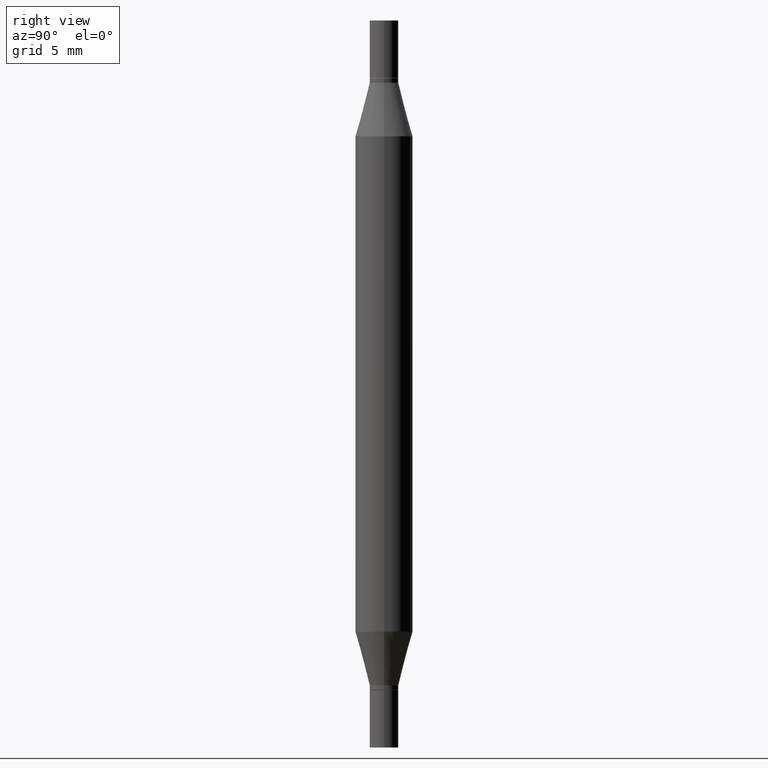
[diagram: clean part render]
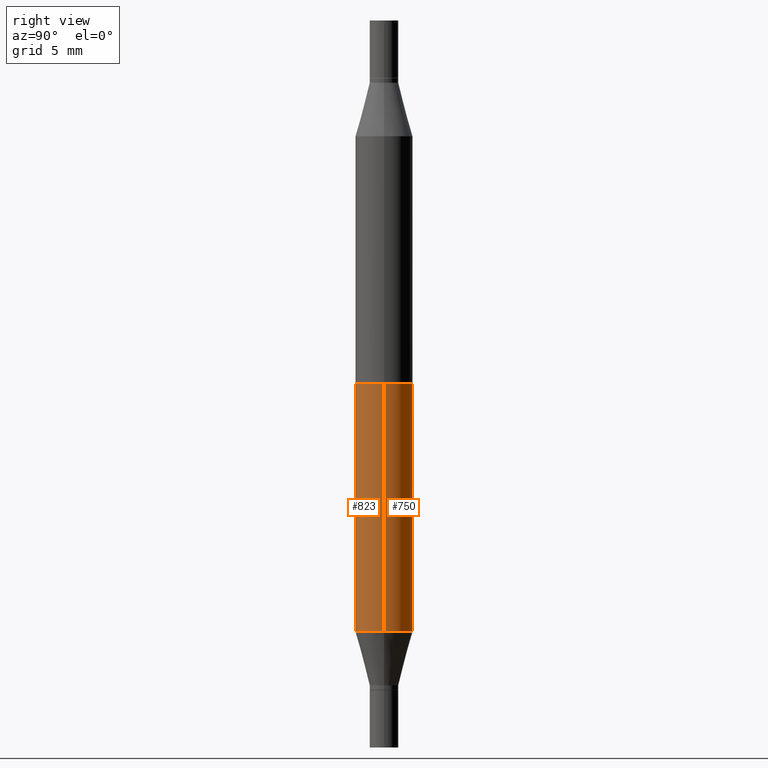
[diagram: same view with one multi-face feature highlighted, each face labeled with its STEP entity id]
A machine part, right view. The highlighted faces form ONE feature: a constant-radius fillet chain: 2 tangent blend faces with common blend radius 1.4999 mm. The faces share edges in the B-rep.
Their STEP definitions:
[1] entity #750 (Cylinder):
#38 = VERTEX_POINT ( 'NONE', #397 ) ;
#46 = AXIS2_PLACEMENT_3D ( 'NONE', #543, #92, #552 ) ;
#48 = LINE ( 'NONE', #741, #148 ) ;
#79 = EDGE_CURVE ( 'NONE', #38, #887, #48, .T. ) ;
#88 = EDGE_CURVE ( 'NONE', #38, #599, #277, .T. ) ;
#92 = DIRECTION ( 'NONE',  ( -2.445468806185136597E-29, -3.491805094961124077E-15, -1.000000000000000000 ) ) ;
#97 = CARTESIAN_POINT ( 'NONE',  ( 0.05904999999999999832, -4.804643186156564878E-15, -1.258004501176717804 ) ) ;
#118 = CARTESIAN_POINT ( 'NONE',  ( -0.05904999999999999832, -2.206690208753205272E-15, -1.258004501176717804 ) ) ;
#121 = DIRECTION ( 'NONE',  ( 1.000000000000000000, -6.982962677686265133E-15, 0.000000000000000000 ) ) ;
#124 = EDGE_LOOP ( 'NONE', ( #504, #434, #691, #747 ) ) ;
#129 = DIRECTION ( 'NONE',  ( 1.000000000000000000, -6.982962677686273021E-15, 0.000000000000000000 ) ) ;
#148 = VECTOR ( 'NONE', #270, 39.37007874015748143 ) ;
#169 = CARTESIAN_POINT ( 'NONE',  ( -0.05905000000000000526, -4.818735010038875060E-15, -1.496099999999999985 ) ) ;
#224 = CIRCLE ( 'NONE', #754, 0.05904999999999999832 ) ;
#256 = EDGE_CURVE ( 'NONE', #887, #672, #224, .T. ) ;
#270 = DIRECTION ( 'NONE',  ( -2.445468806185136877E-29, -3.491805094961123683E-15, -1.000000000000000000 ) ) ;
#277 = CIRCLE ( 'NONE', #868, 0.05904999999999999832 ) ;
#329 = CYLINDRICAL_SURFACE ( 'NONE', #46, 0.05905000000000000526 ) ;
#331 = DIRECTION ( 'NONE',  ( -2.445468806185136877E-29, -3.491805094961123683E-15, -1.000000000000000000 ) ) ;
#336 = LINE ( 'NONE', #169, #873 ) ;
#356 = CARTESIAN_POINT ( 'NONE',  ( 3.076410765668156654E-29, -4.392299240039190746E-15, -1.258004501176717804 ) ) ;
#381 = CARTESIAN_POINT ( 'NONE',  ( -0.05904999999999999832, -4.260284833459836245E-16, -0.2380954988232820146 ) ) ;
#397 = CARTESIAN_POINT ( 'NONE',  ( 0.05904999999999999832, -1.243484836231766624E-15, -0.2380954988232820146 ) ) ;
#434 = ORIENTED_EDGE ( 'NONE', *, *, #88, .F. ) ;
#492 = EDGE_CURVE ( 'NONE', #599, #672, #336, .T. ) ;
#504 = ORIENTED_EDGE ( 'NONE', *, *, #492, .F. ) ;
#536 = FACE_OUTER_BOUND ( 'NONE', #124, .T. ) ;
#543 = CARTESIAN_POINT ( 'NONE',  ( 0.000000000000000000, -5.223847416807283040E-15, -1.496099999999999985 ) ) ;
#552 = DIRECTION ( 'NONE',  ( 1.000000000000000000, -6.982962677686272233E-15, 0.000000000000000000 ) ) ;
#591 = DIRECTION ( 'NONE',  ( 2.445468806185136597E-29, 3.491805094961124077E-15, 1.000000000000000000 ) ) ;
#599 = VERTEX_POINT ( 'NONE', #381 ) ;
#672 = VERTEX_POINT ( 'NONE', #118 ) ;
#691 = ORIENTED_EDGE ( 'NONE', *, *, #79, .T. ) ;
#741 = CARTESIAN_POINT ( 'NONE',  ( 0.05905000000000000526, -5.636191362924657961E-15, -1.496099999999999985 ) ) ;
#747 = ORIENTED_EDGE ( 'NONE', *, *, #256, .T. ) ;
#750 = ADVANCED_FACE ( 'NONE', ( #536 ), #329, .T. ) ;
#754 = AXIS2_PLACEMENT_3D ( 'NONE', #356, #958, #129 ) ;
#800 = CARTESIAN_POINT ( 'NONE',  ( 3.076410765668156654E-29, -8.311408901143919011E-16, -0.2380954988232820146 ) ) ;
#868 = AXIS2_PLACEMENT_3D ( 'NONE', #800, #591, #121 ) ;
#873 = VECTOR ( 'NONE', #331, 39.37007874015748143 ) ;
#887 = VERTEX_POINT ( 'NONE', #97 ) ;
#958 = DIRECTION ( 'NONE',  ( -2.445468806185136597E-29, 3.491481338843145583E-15, 1.000000000000000000 ) ) ;
[2] entity #823 (Cylinder):
#10 = DIRECTION ( 'NONE',  ( -2.445468806185136597E-29, -3.491805094961124077E-15, -1.000000000000000000 ) ) ;
#38 = VERTEX_POINT ( 'NONE', #397 ) ;
#48 = LINE ( 'NONE', #741, #148 ) ;
#79 = EDGE_CURVE ( 'NONE', #38, #887, #48, .T. ) ;
#97 = CARTESIAN_POINT ( 'NONE',  ( 0.05904999999999999832, -4.804643186156564878E-15, -1.258004501176717804 ) ) ;
#118 = CARTESIAN_POINT ( 'NONE',  ( -0.05904999999999999832, -2.206690208753205272E-15, -1.258004501176717804 ) ) ;
#148 = VECTOR ( 'NONE', #270, 39.37007874015748143 ) ;
#165 = CARTESIAN_POINT ( 'NONE',  ( 3.076410765668156654E-29, -4.392299240039190746E-15, -1.258004501176717804 ) ) ;
#169 = CARTESIAN_POINT ( 'NONE',  ( -0.05905000000000000526, -4.818735010038875060E-15, -1.496099999999999985 ) ) ;
#206 = AXIS2_PLACEMENT_3D ( 'NONE', #474, #10, #247 ) ;
#216 = ORIENTED_EDGE ( 'NONE', *, *, #492, .T. ) ;
#220 = AXIS2_PLACEMENT_3D ( 'NONE', #639, #720, #289 ) ;
#247 = DIRECTION ( 'NONE',  ( 1.000000000000000000, -6.982962677686272233E-15, 0.000000000000000000 ) ) ;
#270 = DIRECTION ( 'NONE',  ( -2.445468806185136877E-29, -3.491805094961123683E-15, -1.000000000000000000 ) ) ;
#289 = DIRECTION ( 'NONE',  ( 1.000000000000000000, -6.982962677686265133E-15, 0.000000000000000000 ) ) ;
#320 = EDGE_CURVE ( 'NONE', #672, #887, #508, .T. ) ;
#331 = DIRECTION ( 'NONE',  ( -2.445468806185136877E-29, -3.491805094961123683E-15, -1.000000000000000000 ) ) ;
#336 = LINE ( 'NONE', #169, #873 ) ;
#381 = CARTESIAN_POINT ( 'NONE',  ( -0.05904999999999999832, -4.260284833459836245E-16, -0.2380954988232820146 ) ) ;
#397 = CARTESIAN_POINT ( 'NONE',  ( 0.05904999999999999832, -1.243484836231766624E-15, -0.2380954988232820146 ) ) ;
#472 = DIRECTION ( 'NONE',  ( 1.000000000000000000, -6.982962677686273021E-15, 0.000000000000000000 ) ) ;
#474 = CARTESIAN_POINT ( 'NONE',  ( 0.000000000000000000, -5.223847416807283040E-15, -1.496099999999999985 ) ) ;
#492 = EDGE_CURVE ( 'NONE', #599, #672, #336, .T. ) ;
#508 = CIRCLE ( 'NONE', #759, 0.05904999999999999832 ) ;
#511 = ORIENTED_EDGE ( 'NONE', *, *, #79, .F. ) ;
#523 = CIRCLE ( 'NONE', #220, 0.05904999999999999832 ) ;
#557 = CYLINDRICAL_SURFACE ( 'NONE', #206, 0.05905000000000000526 ) ;
#564 = EDGE_CURVE ( 'NONE', #599, #38, #523, .T. ) ;
#599 = VERTEX_POINT ( 'NONE', #381 ) ;
#639 = CARTESIAN_POINT ( 'NONE',  ( 3.076410765668156654E-29, -8.311408901143919011E-16, -0.2380954988232820146 ) ) ;
#672 = VERTEX_POINT ( 'NONE', #118 ) ;
#689 = DIRECTION ( 'NONE',  ( -2.445468806185136597E-29, 3.491481338843145583E-15, 1.000000000000000000 ) ) ;
#720 = DIRECTION ( 'NONE',  ( 2.445468806185136597E-29, 3.491805094961124077E-15, 1.000000000000000000 ) ) ;
#741 = CARTESIAN_POINT ( 'NONE',  ( 0.05905000000000000526, -5.636191362924657961E-15, -1.496099999999999985 ) ) ;
#759 = AXIS2_PLACEMENT_3D ( 'NONE', #165, #689, #472 ) ;
#762 = FACE_OUTER_BOUND ( 'NONE', #825, .T. ) ;
#801 = ORIENTED_EDGE ( 'NONE', *, *, #320, .T. ) ;
#823 = ADVANCED_FACE ( 'NONE', ( #762 ), #557, .T. ) ;
#825 = EDGE_LOOP ( 'NONE', ( #947, #216, #801, #511 ) ) ;
#873 = VECTOR ( 'NONE', #331, 39.37007874015748143 ) ;
#887 = VERTEX_POINT ( 'NONE', #97 ) ;
#947 = ORIENTED_EDGE ( 'NONE', *, *, #564, .F. ) ;